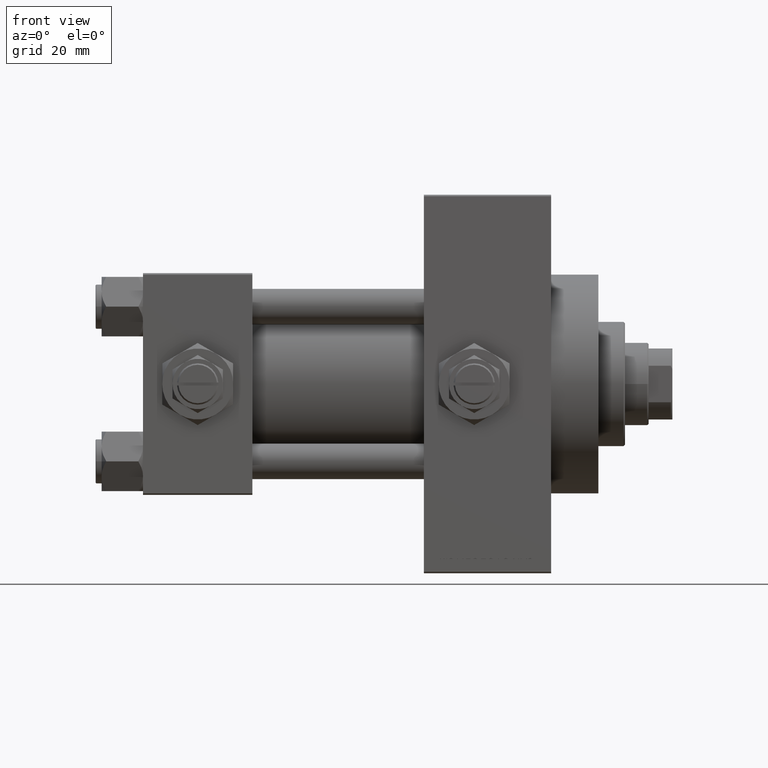
[diagram: clean part render]
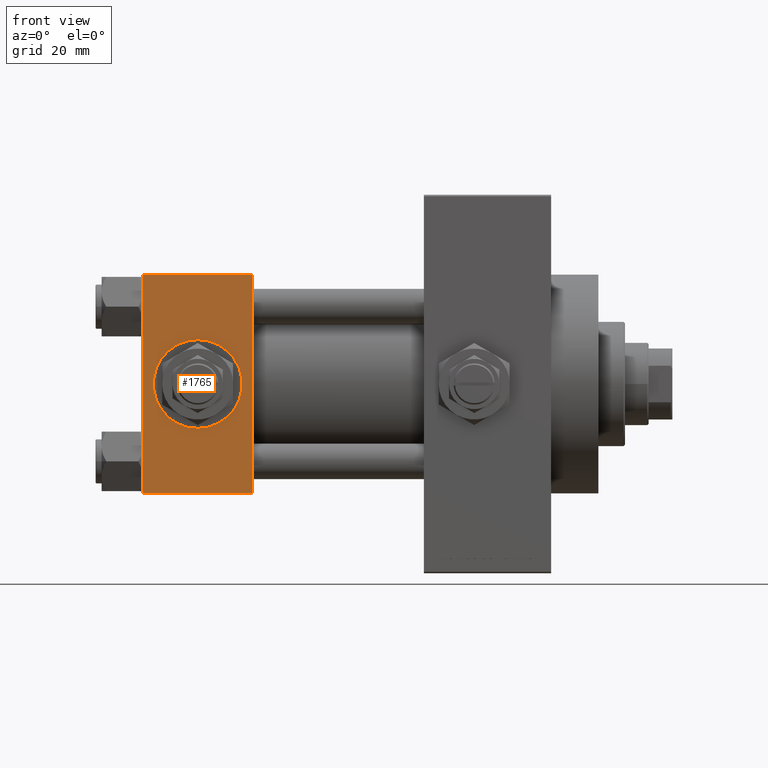
[diagram: same view with one face highlighted and labeled with its STEP entity id]
A machine part, front view. The second image highlights one B-rep face of the part: STEP entity #1765.
In plain terms, the highlighted planar face has unit normal (0, 1, 0).
Its self-contained STEP definition (entity closure, byte-faithful):
#1686 = DIRECTION ( 'NONE',  ( 0.000000000000000000, 0.000000000000000000, -1.000000000000000000 ) ) ;
#1765 = ADVANCED_FACE ( 'NONE', ( #3194, #49031 ), #14910, .F. ) ;
#2377 = LINE ( 'NONE', #17091, #21877 ) ;
#3194 = FACE_BOUND ( 'NONE', #21024, .T. ) ;
#4124 = CARTESIAN_POINT ( 'NONE',  ( 37.00000000000000000, -37.50000000000000711, 36.99999999999999289 ) ) ;
#4191 = VERTEX_POINT ( 'NONE', #7559 ) ;
#5640 = ORIENTED_EDGE ( 'NONE', *, *, #42611, .T. ) ;
#6134 = VERTEX_POINT ( 'NONE', #17298 ) ;
#6511 = ORIENTED_EDGE ( 'NONE', *, *, #15024, .T. ) ;
#7559 = CARTESIAN_POINT ( 'NONE',  ( 37.00000000000000000, -37.50000000000000000, -37.00000000000003553 ) ) ;
#8379 = DIRECTION ( 'NONE',  ( -1.000000000000000000, 0.000000000000000000, 0.000000000000000000 ) ) ;
#9158 = ORIENTED_EDGE ( 'NONE', *, *, #21667, .T. ) ;
#10643 = VECTOR ( 'NONE', #46393, 1000.000000000000000 ) ;
#11377 = EDGE_CURVE ( 'NONE', #13521, #4191, #18448, .T. ) ;
#11394 = ORIENTED_EDGE ( 'NONE', *, *, #11377, .F. ) ;
#13521 = VERTEX_POINT ( 'NONE', #31339 ) ;
#13861 = CARTESIAN_POINT ( 'NONE',  ( 18.50000000000000355, -37.50000000000000711, 14.99999999999999822 ) ) ;
#14234 = CIRCLE ( 'NONE', #41957, 15.00000000000000178 ) ;
#14657 = DIRECTION ( 'NONE',  ( -0.000000000000000000, 1.000000000000000000, 9.251858538542971581E-17 ) ) ;
#14720 = CARTESIAN_POINT ( 'NONE',  ( 37.00000000000000000, -37.50000000000000711, 37.49999999999999289 ) ) ;
#14910 = PLANE ( 'NONE',  #30986 ) ;
#14995 = CARTESIAN_POINT ( 'NONE',  ( 18.50000000000000000, -37.50000000000000711, -3.469446951953614978E-15 ) ) ;
#15024 = EDGE_CURVE ( 'NONE', #6134, #4191, #2377, .T. ) ;
#15415 = AXIS2_PLACEMENT_3D ( 'NONE', #23892, #46545, #1686 ) ;
#15541 = VERTEX_POINT ( 'NONE', #37788 ) ;
#17091 = CARTESIAN_POINT ( 'NONE',  ( 37.00000000000000000, -37.50000000000000000, -37.00000000000003553 ) ) ;
#17298 = CARTESIAN_POINT ( 'NONE',  ( 0.000000000000000000, -37.50000000000000000, -37.00000000000003553 ) ) ;
#17627 = CARTESIAN_POINT ( 'NONE',  ( 18.50000000000000000, -37.50000000000000711, -15.00000000000000533 ) ) ;
#18394 = CARTESIAN_POINT ( 'NONE',  ( 37.00000000000000000, -37.50000000000000711, 37.49999999999999289 ) ) ;
#18448 = LINE ( 'NONE', #14720, #35277 ) ;
#20184 = VECTOR ( 'NONE', #8379, 1000.000000000000000 ) ;
#21024 = EDGE_LOOP ( 'NONE', ( #31682, #29326 ) ) ;
#21667 = EDGE_CURVE ( 'NONE', #15541, #6134, #31692, .T. ) ;
#21877 = VECTOR ( 'NONE', #32276, 1000.000000000000000 ) ;
#23892 = CARTESIAN_POINT ( 'NONE',  ( 18.50000000000000000, -37.50000000000000711, -3.469446951953614978E-15 ) ) ;
#25220 = VERTEX_POINT ( 'NONE', #17627 ) ;
#26178 = DIRECTION ( 'NONE',  ( 0.000000000000000000, 9.251858538542971581E-17, -1.000000000000000000 ) ) ;
#29326 = ORIENTED_EDGE ( 'NONE', *, *, #33869, .F. ) ;
#30986 = AXIS2_PLACEMENT_3D ( 'NONE', #18394, #14657, #41793 ) ;
#31339 = CARTESIAN_POINT ( 'NONE',  ( 37.00000000000000000, -37.50000000000000711, 36.99999999999999289 ) ) ;
#31682 = ORIENTED_EDGE ( 'NONE', *, *, #46267, .F. ) ;
#31692 = LINE ( 'NONE', #39156, #10643 ) ;
#32276 = DIRECTION ( 'NONE',  ( 1.000000000000000000, 0.000000000000000000, 0.000000000000000000 ) ) ;
#33869 = EDGE_CURVE ( 'NONE', #39089, #25220, #14234, .T. ) ;
#33914 = DIRECTION ( 'NONE',  ( 0.000000000000000000, -1.000000000000000000, -8.673617379884036705E-17 ) ) ;
#35277 = VECTOR ( 'NONE', #26178, 1000.000000000000000 ) ;
#37788 = CARTESIAN_POINT ( 'NONE',  ( 0.000000000000000000, -37.50000000000000711, 36.99999999999999289 ) ) ;
#39089 = VERTEX_POINT ( 'NONE', #13861 ) ;
#39156 = CARTESIAN_POINT ( 'NONE',  ( 0.000000000000000000, -37.50000000000000711, 37.49999999999999289 ) ) ;
#39684 = EDGE_LOOP ( 'NONE', ( #9158, #6511, #11394, #5640 ) ) ;
#41793 = DIRECTION ( 'NONE',  ( 0.000000000000000000, -9.251858538542971581E-17, 1.000000000000000000 ) ) ;
#41885 = DIRECTION ( 'NONE',  ( 0.000000000000000000, 0.000000000000000000, -1.000000000000000000 ) ) ;
#41957 = AXIS2_PLACEMENT_3D ( 'NONE', #14995, #33914, #41885 ) ;
#41986 = LINE ( 'NONE', #4124, #20184 ) ;
#42611 = EDGE_CURVE ( 'NONE', #13521, #15541, #41986, .T. ) ;
#46267 = EDGE_CURVE ( 'NONE', #25220, #39089, #46413, .T. ) ;
#46393 = DIRECTION ( 'NONE',  ( 0.000000000000000000, 9.251858538542971581E-17, -1.000000000000000000 ) ) ;
#46413 = CIRCLE ( 'NONE', #15415, 15.00000000000000178 ) ;
#46545 = DIRECTION ( 'NONE',  ( 0.000000000000000000, -1.000000000000000000, -8.673617379884036705E-17 ) ) ;
#49031 = FACE_OUTER_BOUND ( 'NONE', #39684, .T. ) ;